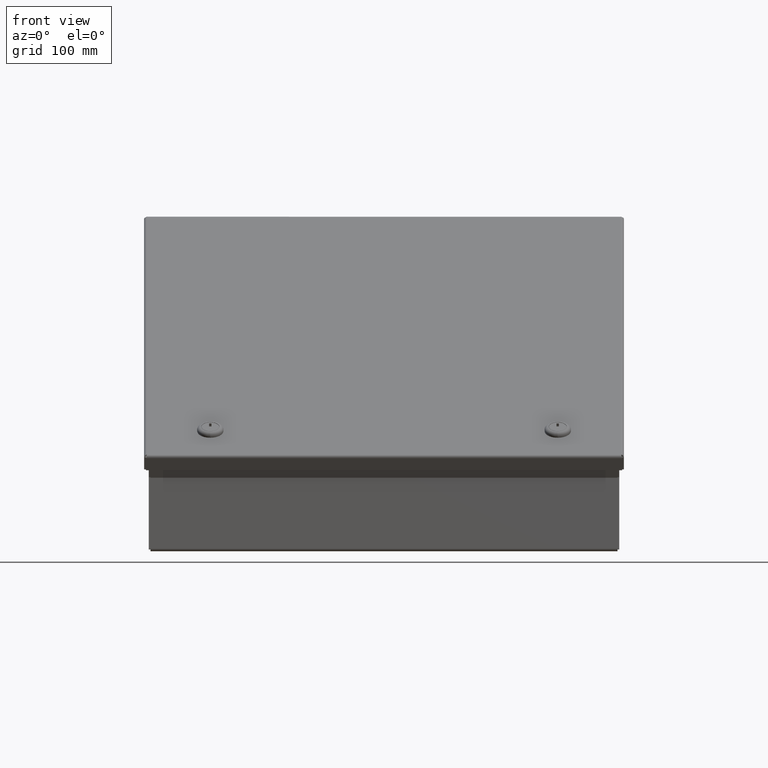
[diagram: clean part render]
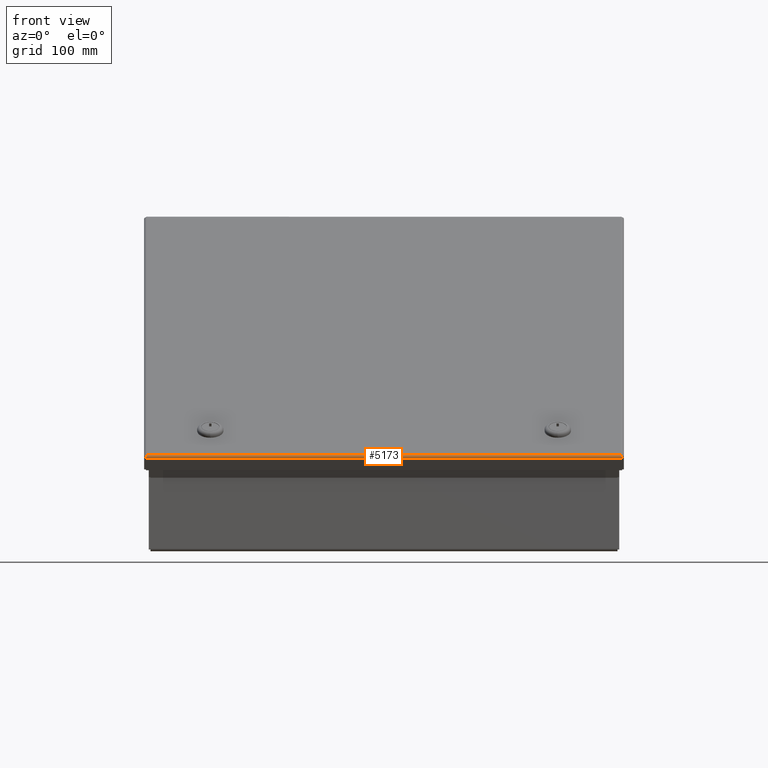
[diagram: same view with one face highlighted and labeled with its STEP entity id]
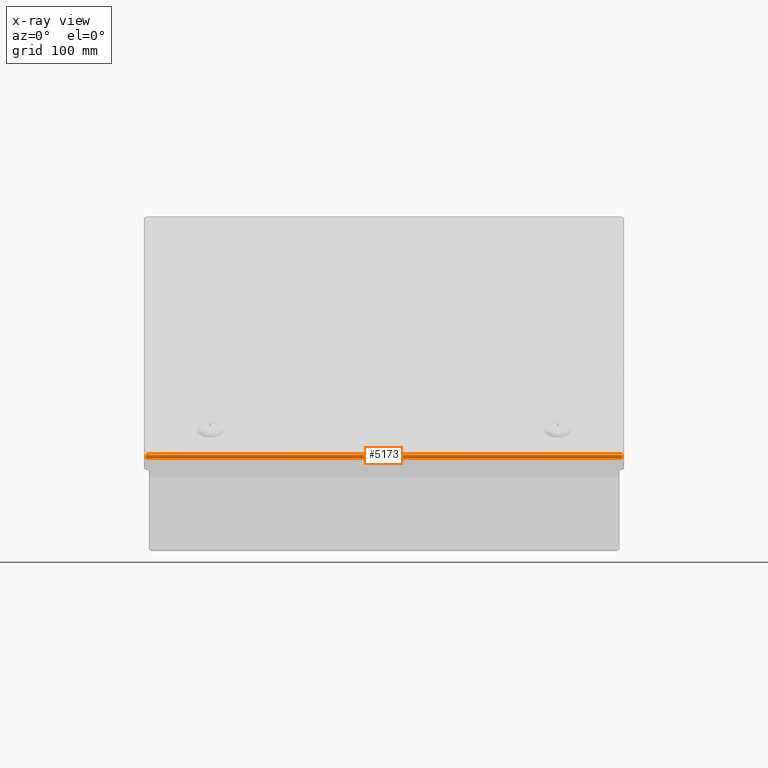
[diagram: x-ray of the same camera — body ghosted, the highlighted face saturated]
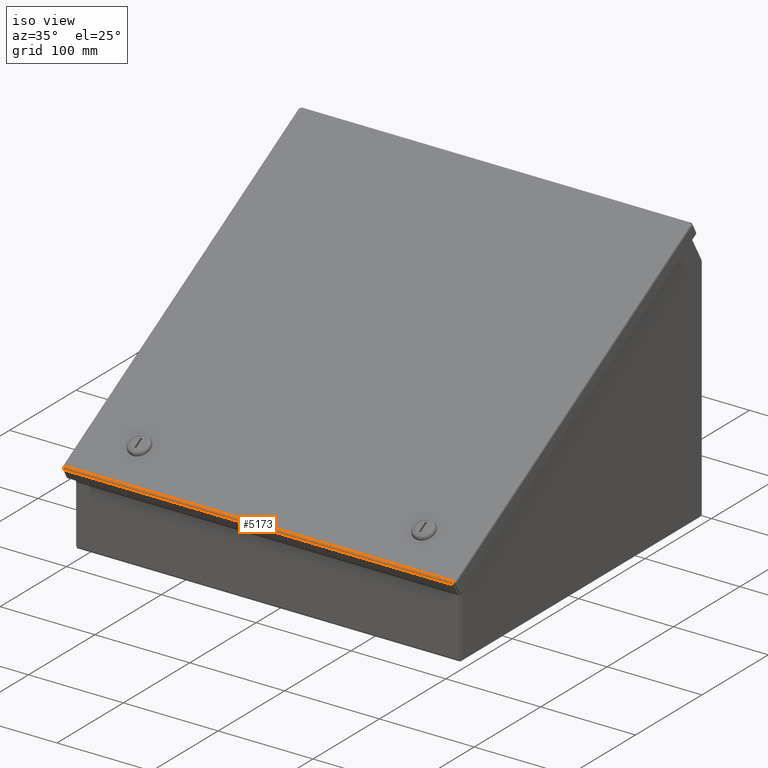
[diagram: same view with one face highlighted and labeled with its STEP entity id]
A machine part, front view. The second image highlights one B-rep face of the part: STEP entity #5173.
The next image is the same camera in x-ray: the body ghosted, the highlighted face saturated — about 0% of this face is hidden behind the body in this view.
A second angle (iso view) of the same face is appended — the face is thin or edge-on in the first view.
In plain terms, the highlighted cylindrical surface (edge-blend (fillet) strip) has radius 2.3368 mm, axis along (1, 0, -0).
Its self-contained STEP definition (entity closure, byte-faithful):
#5173 = ADVANCED_FACE( '', ( #10690 ), #10691, .T. );
#10690 = FACE_OUTER_BOUND( '', #36737, .T. );
#10691 = CYLINDRICAL_SURFACE( '', #36738, 2.33680000000000 );
#36737 = EDGE_LOOP( '', ( #61252, #61253, #61254, #61255 ) );
#36738 = AXIS2_PLACEMENT_3D( '', #61256, #61257, #61258 );
#61252 = ORIENTED_EDGE( '', *, *, #70119, .T. );
#61253 = ORIENTED_EDGE( '', *, *, #67594, .F. );
#61254 = ORIENTED_EDGE( '', *, *, #65933, .T. );
#61255 = ORIENTED_EDGE( '', *, *, #68217, .T. );
#61256 = CARTESIAN_POINT( '', ( -204.851000000000, -205.117700000000, -0.812800000000000 ) );
#61257 = DIRECTION( '', ( 1.00000000000000, -6.12323399573677E-017, -0.000000000000000 ) );
#61258 = DIRECTION( '', ( 0.000000000000000, 0.000000000000000, -1.00000000000000 ) );
#65933 = EDGE_CURVE( '', #72725, #70927, #72728, .T. );
#67594 = EDGE_CURVE( '', #72725, #73787, #75390, .T. );
#68217 = EDGE_CURVE( '', #70927, #76295, #76297, .T. );
#70119 = EDGE_CURVE( '', #76295, #73787, #78723, .T. );
#70927 = VERTEX_POINT( '', #80154 );
#72725 = VERTEX_POINT( '', #85743 );
#72728 = B_SPLINE_CURVE_WITH_KNOTS( '', 3, ( #85756, #85757, #85758, #85759, #85760, #85761, #85762, #85763, #85764, #85765 ), .UNSPECIFIED., .F., .F., ( 4, 2, 2, 2, 4 ), ( 0.000000000000000, 0.250000000000000, 0.500000000000000, 0.750000000000000, 1.00000000000000 ), .UNSPECIFIED. );
#73787 = VERTEX_POINT( '', #88681 );
#75390 = LINE( '', #93139, #93140 );
#76295 = VERTEX_POINT( '', #95629 );
#76297 = LINE( '', #95632, #95633 );
#78723 = B_SPLINE_CURVE_WITH_KNOTS( '', 3, ( #102862, #102863, #102864, #102865, #102866, #102867, #102868, #102869, #102870, #102871 ), .UNSPECIFIED., .F., .F., ( 4, 2, 2, 2, 4 ), ( 0.000000000000000, 0.250000000000000, 0.500000000000000, 0.750000000000000, 1.00000000000000 ), .UNSPECIFIED. );
#80154 = CARTESIAN_POINT( '', ( -205.660971572875, -207.454500000000, -0.812800000000000 ) );
#85743 = CARTESIAN_POINT( '', ( -204.851000000000, -205.117700000000, 1.52400000000000 ) );
#85756 = CARTESIAN_POINT( '', ( -204.851000000000, -205.117700000000, 1.52400000000000 ) );
#85757 = CARTESIAN_POINT( '', ( -204.918497631073, -205.423586404704, 1.52400000000000 ) );
#85758 = CARTESIAN_POINT( '', ( -204.985995262146, -205.729352456171, 1.46317935083852 ) );
#85759 = CARTESIAN_POINT( '', ( -205.120990524292, -206.294556833331, 1.22906403230623 ) );
#85760 = CARTESIAN_POINT( '', ( -205.188488155365, -206.553772775237, 1.05586147731607 ) );
#85761 = CARTESIAN_POINT( '', ( -205.323483417511, -206.986361477316, 0.623272775237381 ) );
#85762 = CARTESIAN_POINT( '', ( -205.390981048584, -207.159564032306, 0.364056833330717 ) );
#85763 = CARTESIAN_POINT( '', ( -205.525976310729, -207.393679350839, -0.201147543829236 ) );
#85764 = CARTESIAN_POINT( '', ( -205.593473941802, -207.454500000000, -0.506913595295477 ) );
#85765 = CARTESIAN_POINT( '', ( -205.660971572875, -207.454500000000, -0.812800000000004 ) );
#88681 = CARTESIAN_POINT( '', ( 204.851000000000, -205.117700000000, 1.52400000000000 ) );
#93139 = CARTESIAN_POINT( '', ( 204.851000000000, -205.117700000000, 1.52400000000000 ) );
#93140 = VECTOR( '', #105423, 1000.00000000000 );
#95629 = CARTESIAN_POINT( '', ( 205.660971572875, -207.454500000000, -0.812799999999942 ) );
#95632 = CARTESIAN_POINT( '', ( -1437.46220000000, -207.454500000000, -0.812799999999987 ) );
#95633 = VECTOR( '', #105817, 1000.00000000000 );
#102862 = CARTESIAN_POINT( '', ( 205.660971572875, -207.454500000000, -0.812799999999946 ) );
#102863 = CARTESIAN_POINT( '', ( 205.593473941802, -207.454500000000, -0.506913595295420 ) );
#102864 = CARTESIAN_POINT( '', ( 205.525976310729, -207.393679350839, -0.201147543829181 ) );
#102865 = CARTESIAN_POINT( '', ( 205.390981048583, -207.159564032306, 0.364056833330764 ) );
#102866 = CARTESIAN_POINT( '', ( 205.323483417510, -206.986361477316, 0.623272775237423 ) );
#102867 = CARTESIAN_POINT( '', ( 205.188488155365, -206.553772775237, 1.05586147731610 ) );
#102868 = CARTESIAN_POINT( '', ( 205.120990524292, -206.294556833331, 1.22906403230626 ) );
#102869 = CARTESIAN_POINT( '', ( 204.985995262146, -205.729352456171, 1.46317935083853 ) );
#102870 = CARTESIAN_POINT( '', ( 204.918497631073, -205.423586404705, 1.52400000000001 ) );
#102871 = CARTESIAN_POINT( '', ( 204.851000000000, -205.117700000000, 1.52400000000000 ) );
#105423 = DIRECTION( '', ( 1.00000000000000, 0.000000000000000, 1.58779137883463E-018 ) );
#105817 = DIRECTION( '', ( 1.00000000000000, -4.82718356274498E-017, 1.65934434969359E-018 ) );